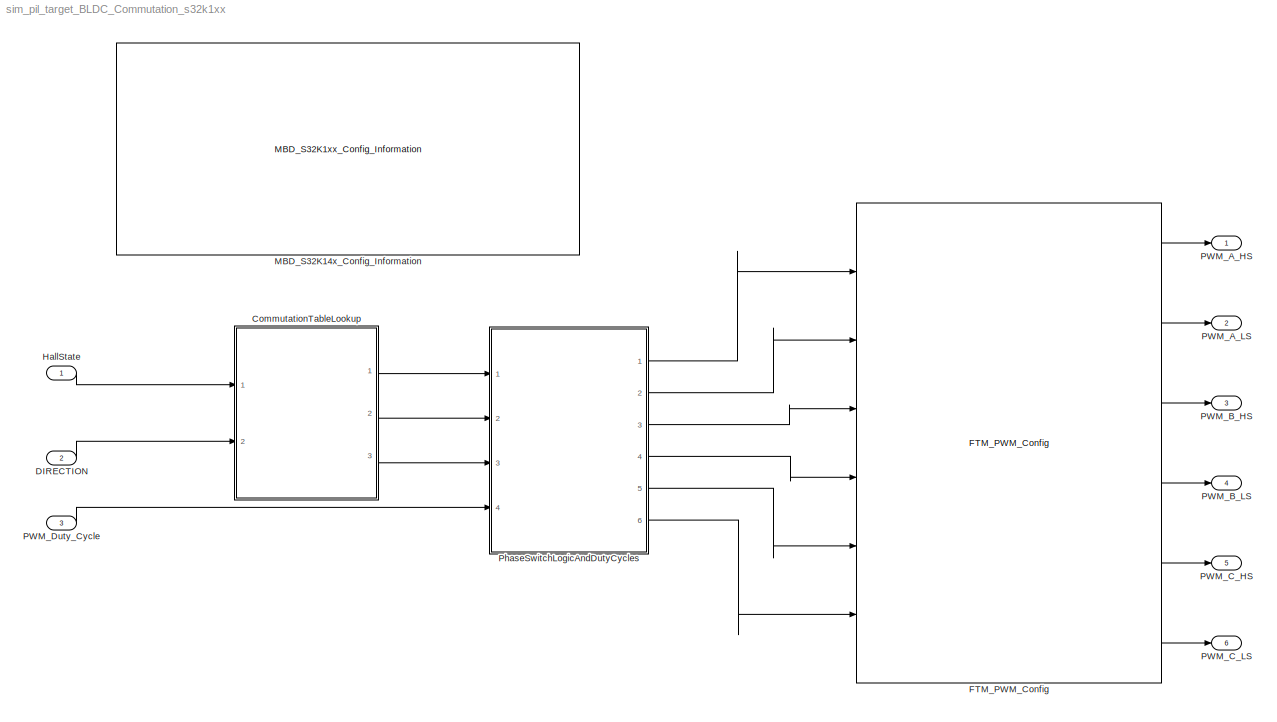
MODEL sim_pil_target_BLDC_Commutation_s32k1xx
KIND model
CONFIG InitFcn = mbd_s32k_consistency_checks(bdroot(gcs));
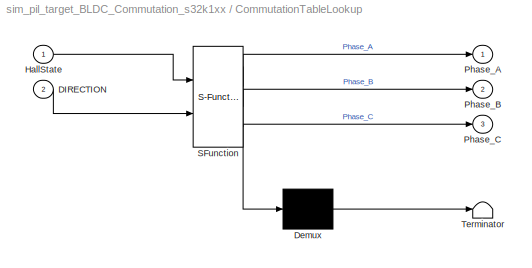
BLOCK [SubSystem] CommutationTableLookup
  ErrorFcn = Stateflow.Translate.translate
  PermitHierarchicalResolution = ExplicitOnly
  Ports = [2, 3]
  RequestExecContextInheritance = off
  SFBlockType = Chart
  SID = 41
  TreatAsAtomicUnit = on
  Variant = off
BLOCK [Demux] CommutationTableLookup/ Demux 
  Outputs = 1
  Ports = [1, 1]
  SID = 41::84
BLOCK [S-Function] CommutationTableLookup/ SFunction 
  EnableBusSupport = off
  FunctionName = sf_sfun
  PortCounts = [2 4]
  Ports = [2, 4]
  SFcnIsStateOwnerBlock = off
  SFunctionDeploymentMode = off
  SID = 41::83
  Tag = Stateflow S-Function sim_pil_target_BLDC_Commutation_s32k1xx 1
BLOCK [Terminator] CommutationTableLookup/ Terminator 
  SID = 41::85
BLOCK [Inport] CommutationTableLookup/DIRECTION
  IconDisplay = Port number
  Port = 2
  SID = 41::61
BLOCK [Inport] CommutationTableLookup/HallState
  IconDisplay = Port number
  SID = 41::50
BLOCK [Outport] CommutationTableLookup/Phase_A
  IconDisplay = Port number
  SID = 41::51
BLOCK [Outport] CommutationTableLookup/Phase_B
  IconDisplay = Port number
  Port = 2
  SID = 41::52
BLOCK [Outport] CommutationTableLookup/Phase_C
  IconDisplay = Port number
  Port = 3
  SID = 41::53
BLOCK [Inport] DIRECTION
  IconDisplay = Port number
  Port = 2
  SID = 37
BLOCK [Reference] FTM_PWM_Config  REF=mbd_s32k1xx_ec_toolbox/Motor Control Blocks/FTM Blocks/FTM_PWM_Config
  Ports = [6, 6]
  Priority = 1
  SID = 43
  SourceBlock = mbd_s32k1xx_ec_toolbox/Motor Control Blocks/FTM Blocks/FTM_PWM_Config
  SourceType = FTM_s32k_pwm_config_block
  chTrigger0 = off
  chTrigger1 = off
  chTrigger2 = off
  chTrigger3 = off
  chTrigger4 = off
  chTrigger5 = off
  chTrigger6 = off
  chTrigger7 = off
  chan0En = on
  chan0Type = Independent
  chan2En = on
  chan2Type = Independent
  chan4En = on
  chan4Type = Independent
  chan6En = off
  chan6Type = Independent
  chnMatch0 = off
  chnMatch1 = off
  chnMatch2 = off
  chnMatch3 = off
  chnMatch4 = off
  chnMatch5 = off
  chnMatch6 = off
  chnMatch7 = off
  deadtimeNs = 0
  deadtimePrescaler = Divide by 1
  deadtimeTicks = 0
  deadtimeUnits = Nanoseconds
  dutyCycleCh0 = 0.26
  dutyCycleCh1 = 0.25
  dutyCycleCh2 = 0.25
  dutyCycleCh3 = 0.25
  dutyCycleCh4 = 0.25
  dutyCycleCh5 = 0.25
  dutyCycleCh6 = 0.25
  dutyCycleCh7 = 0.25
  dutyCycleSim = on
  fault_disen_0 = off
  fault_disen_1 = off
  fault_disen_2 = off
  fault_disen_3 = off
  fault_filter_0 = off
  fault_filter_1 = off
  fault_filter_2 = off
  fault_filter_3 = off
  fault_pin_0 = None
  fault_pin_1 = None
  fault_pin_2 = None
  fault_pin_3 = None
  fault_polarity_0 = Active High
  fault_polarity_1 = Active high
  fault_polarity_2 = Active high
  fault_polarity_3 = Active high
  ftmMode = Center-Aligned PWM
  ftmModule = 0
  ftmPeriod = 20000
  ftmPrescaler = Divide by 4
  ftmPwmUnits = Hz
  ftmSourceClock = 80 MHz
  initTrigger = off
  mcuTargetUpdate = on
  outFrequency = 1000
  outputComplem0 = Main duplicated
  outputComplem2 = Main duplicated
  outputComplem4 = Main duplicated
  outputComplem6 = Main duplicated
  outputLevel0 = Low
  outputLevel1 = Low
  outputLevel2 = Low
  outputLevel3 = Low
  outputLevel4 = Low
  outputLevel5 = Low
  outputLevel6 = Low
  outputLevel7 = Low
  pinFtmCh0 = PTB12: [FTM0_CH0 | FTM Channel]
  pinFtmCh1 = None
  pinFtmCh2 = PTC2: [FTM0_CH2 | FTM Channel]
  pinFtmCh3 = None
  pinFtmCh4 = PTB4: [FTM0_CH4 | FTM Channel]
  pinFtmCh5 = None
  pinFtmCh6 = PTA17: [FTM0_CH6 | FTM Channel]
  pinFtmCh7 = None
  pinPolCh0 = Active Low
  pinPolCh1 = Active Low
  pinPolCh2 = Active Low
  pinPolCh3 = Active Low
  pinPolCh4 = Active Low
  pinPolCh5 = Active Low
  pinPolCh6 = Active Low
  pinPolCh7 = Active Low
  pwmFaultClearing = Fault control disabled
  pwmFaultFilterValue = 0
  pwmFaultInterrupt = off
  pwmFaultPinState = Safe Value
  pwmFaultPriority = 15
  pwmFaultProtection = off
  pwmSyncAutoClear = on
  pwmSyncCounterInitial = System Clock
  pwmSyncHwRouting = TRGMUX_FTM7
  pwmSyncInvert = System Clock
  pwmSyncMaxLoad = on
  pwmSyncMinLoad = on
  pwmSyncOutControl = System Clock
  pwmSyncOutMask = System Clock
  pwmSyncPoints = Update now
  pwmSyncTrg = Software trigger
  pwmSyncTrg0 = off
  pwmSyncTrg1 = off
  pwmSyncTrg2 = off
  reloadEnable = off
  reloadFrequency = 0
  reloadHCR = 0
  reloadHalfCycle = off
  reloadPriority = 15
  showAdvOpt = on
  startAfterInit = on
  swcontrol_enable = off
BLOCK [Inport] HallState
  IconDisplay = Port number
  SID = 36
BLOCK [Reference] MBD_S32K14x_Config_Information  REF=mbd_s32k1xx_ec_toolbox/MBD_S32K1xx_Config_Information
  ADC_PcrCheckEnDis = on
  AMMCLIB_PcrCheckEnDis = on
  CMP_PcrCheckEnDis = on
  CSEc_PcrCheckEnDis = on
  ConfigParams_PcrCheckEnDis = on
  FM_PcrCheckEnDis = on
  FTM_Dual_Edge_Inputs_PcrCheckEnDis = on
  FTM_Hall_Sensor_Inputs_PcrCheckEnDis = on
  FTM_Input_Edge_Inputs_PcrCheckEnDis = on
  FTM_PWM_PcrCheckEnDis = on
  FTM_Quadrature_Inputs_PcrCheckEnDis = on
  FlexCAN_PcrCheckEnDis = on
  FlexIO_PcrCheckEnDis = on
  GPIO_InputPcrCheckEnDis = on
  GPIO_OutputPcrCheckEnDis = on
  LIN_PcrCheckEnDis = on
  LPI2C_PcrCheckEnDis = on
  LPSPI_PcrCheckEnDis = on
  LPTMR_PcrCheckEnDis = on
  LPUART_PcrCheckEnDis = on
  ModelRef_PcrCheckEnDis = on
  PDB0_PcrCheckEnDis = on
  PIT_PcrCheckEnDis = on
  Ports = []
  Profile_PcrCheckEnDis = on
  RTC_PcrCheckEnDis = on
  SBC_PcrCheckEnDis = on
  SID = 1
  SourceBlock = mbd_s32k1xx_ec_toolbox/MBD_S32K1xx_Config_Information
  SourceType = MBDTBX_EC_S32K
  WDOG_PcrCheckEnDis = on
  config_params = []
  disp_str = Target : S32K144-64KB_SRAM\nPackage : 100-pin\nSystem clock : 80 MHz\nXTAL clock : External 8 MHz\nCompiler : GCC\nTarget Type : FLASH\nProcessor-In-Loop : (COM1, 115200, OpenSDA: E)\nStep Tick Interrupt Priority : 15
  ds_import_enable = off
  eDMA_PcrCheckEnDis = on
  gcc_target_assemble_opts = -mcpu=cortex-m4 -mthumb -mfloat-abi=hard -mfpu=fpv4-sp-d16 -g
  gcc_target_compile_opts = -mcpu=cortex-m4 -mthumb -mfloat-abi=hard -mfpu=fpv4-sp-d16 -O1 -g -gstrict-dwarf
  gcc_target_default_lcf = on
  gcc_target_link_opts = -mcpu=cortex-m4 -mthumb -mfloat-abi=hard -mfpu=fpv4-sp-d16
  gcc_target_user_lcf = S32K144_64_flash.ld
  ghs_target_assemble_opts = -cpu=cortexm4f -fpu=vfpv4_d16
  ghs_target_compile_opts = -cpu=cortexm4f -thumb -DARM_MATH_CM4 -fpu=vfpv4_d16 -fsingle -Ogeneral -Wundef -Wimplicit-int -Wshadow -Wtrigraphs --no_commons --gnu_asm -gnu99 -gdwarf-2 -G
  ghs_target_default_lcf = on
  ghs_target_link_opts = -cpu=cortexm4f -thumb -fpu=vfpv4_d16
  ghs_target_user_lcf = S32K144_64_flash.ld
  iar_target_assemble_opts = --cpu Cortex-M4F --thumb --fpu VFPv4_sp
  iar_target_compile_opts = --cpu=Cortex-M4F --thumb --fpu=VFPv4_sp -Ol -e --debug --dlib_config normal
  iar_target_default_lcf = on
  iar_target_link_opts = --no_exceptions --vfe --inline
  iar_target_user_lcf = S32K144_64_flash.icf
  mbdt_ver = 0
  mcu_steptick_prio = 15
  mcu_steptick_timer = LPIT Channel 0
  mcu_system_clock_freq = 80
  mcu_target_name = S32K144
  mcu_target_package = 100-LQFP
  mcu_target_sram_size = 64KB
  mcu_xtal_freq = External 8
  pil_download_enable = on
  pil_download_rate = 57600
  pil_opensda_drive = Custom
  pil_opensda_drive_custom = D
  pil_uart_instance = 1
  pil_uart_rx = PTC6: [LPUART1_RX | Receive]
  pil_uart_tx = PTC7: [LPUART1_TX | Transmit]
  rbl_com_port = Custom
  rbl_com_port_custom = COM1
  rbl_download_enable = off
  rbl_download_interface = OpenSDA
  rbl_restart_request = off
  rbl_start_delay = 5000000
  target_compiler = GCC
  target_memory = FLASH
BLOCK [Outport] PWM_A_HS
  IconDisplay = Port number
  SID = 30
BLOCK [Outport] PWM_A_LS
  IconDisplay = Port number
  Port = 2
  SID = 31
BLOCK [Outport] PWM_B_HS
  IconDisplay = Port number
  Port = 3
  SID = 32
BLOCK [Outport] PWM_B_LS
  IconDisplay = Port number
  Port = 4
  SID = 33
BLOCK [Outport] PWM_C_HS
  IconDisplay = Port number
  Port = 5
  SID = 34
BLOCK [Outport] PWM_C_LS
  IconDisplay = Port number
  Port = 6
  SID = 35
BLOCK [Inport] PWM_Duty_Cycle
  IconDisplay = Port number
  Port = 3
  SID = 38
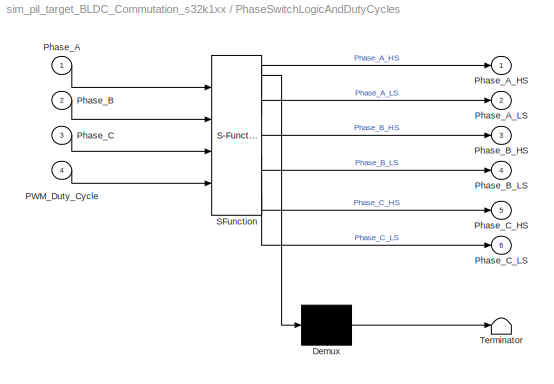
BLOCK [SubSystem] PhaseSwitchLogicAndDutyCycles
  ErrorFcn = Stateflow.Translate.translate
  PermitHierarchicalResolution = ExplicitOnly
  Ports = [4, 6]
  RequestExecContextInheritance = off
  SFBlockType = Chart
  SID = 42
  TreatAsAtomicUnit = on
  Variant = off
BLOCK [Demux] PhaseSwitchLogicAndDutyCycles/ Demux 
  Outputs = 1
  Ports = [1, 1]
  SID = 42::34
BLOCK [S-Function] PhaseSwitchLogicAndDutyCycles/ SFunction 
  EnableBusSupport = off
  FunctionName = sf_sfun
  PortCounts = [4 7]
  Ports = [4, 7]
  SFcnIsStateOwnerBlock = off
  SFunctionDeploymentMode = off
  SID = 42::33
  Tag = Stateflow S-Function sim_pil_target_BLDC_Commutation_s32k1xx 6
BLOCK [Terminator] PhaseSwitchLogicAndDutyCycles/ Terminator 
  SID = 42::35
BLOCK [Inport] PhaseSwitchLogicAndDutyCycles/PWM_Duty_Cycle
  IconDisplay = Port number
  Port = 4
  SID = 42::4
BLOCK [Inport] PhaseSwitchLogicAndDutyCycles/Phase_A
  IconDisplay = Port number
  SID = 42::1
BLOCK [Outport] PhaseSwitchLogicAndDutyCycles/Phase_A_HS
  IconDisplay = Port number
  SID = 42::8
BLOCK [Outport] PhaseSwitchLogicAndDutyCycles/Phase_A_LS
  IconDisplay = Port number
  Port = 2
  SID = 42::9
BLOCK [Inport] PhaseSwitchLogicAndDutyCycles/Phase_B
  IconDisplay = Port number
  Port = 2
  SID = 42::2
BLOCK [Outport] PhaseSwitchLogicAndDutyCycles/Phase_B_HS
  IconDisplay = Port number
  Port = 3
  SID = 42::10
BLOCK [Outport] PhaseSwitchLogicAndDutyCycles/Phase_B_LS
  IconDisplay = Port number
  Port = 4
  SID = 42::11
BLOCK [Inport] PhaseSwitchLogicAndDutyCycles/Phase_C
  IconDisplay = Port number
  Port = 3
  SID = 42::3
BLOCK [Outport] PhaseSwitchLogicAndDutyCycles/Phase_C_HS
  IconDisplay = Port number
  Port = 5
  SID = 42::12
BLOCK [Outport] PhaseSwitchLogicAndDutyCycles/Phase_C_LS
  IconDisplay = Port number
  Port = 6
  SID = 42::13
LINE CommutationTableLookup/ Demux :1 -> CommutationTableLookup/ Terminator :1
LINE CommutationTableLookup/ SFunction :1 -> CommutationTableLookup/ Demux :1
LINE CommutationTableLookup/ SFunction :2 -> CommutationTableLookup/Phase_A:1
LINE CommutationTableLookup/ SFunction :3 -> CommutationTableLookup/Phase_B:1
LINE CommutationTableLookup/ SFunction :4 -> CommutationTableLookup/Phase_C:1
LINE CommutationTableLookup/DIRECTION:1 -> CommutationTableLookup/ SFunction :2
LINE CommutationTableLookup/HallState:1 -> CommutationTableLookup/ SFunction :1
LINE CommutationTableLookup:1 -> PhaseSwitchLogicAndDutyCycles:1
LINE CommutationTableLookup:2 -> PhaseSwitchLogicAndDutyCycles:2
LINE CommutationTableLookup:3 -> PhaseSwitchLogicAndDutyCycles:3
LINE DIRECTION:1 -> CommutationTableLookup:2
LINE FTM_PWM_Config:1 -> PWM_A_HS:1
LINE FTM_PWM_Config:2 -> PWM_A_LS:1
LINE FTM_PWM_Config:3 -> PWM_B_HS:1
LINE FTM_PWM_Config:4 -> PWM_B_LS:1
LINE FTM_PWM_Config:5 -> PWM_C_HS:1
LINE FTM_PWM_Config:6 -> PWM_C_LS:1
LINE HallState:1 -> CommutationTableLookup:1
LINE PWM_Duty_Cycle:1 -> PhaseSwitchLogicAndDutyCycles:4
LINE PhaseSwitchLogicAndDutyCycles/ Demux :1 -> PhaseSwitchLogicAndDutyCycles/ Terminator :1
LINE PhaseSwitchLogicAndDutyCycles/ SFunction :1 -> PhaseSwitchLogicAndDutyCycles/ Demux :1
LINE PhaseSwitchLogicAndDutyCycles/ SFunction :2 -> PhaseSwitchLogicAndDutyCycles/Phase_A_HS:1
LINE PhaseSwitchLogicAndDutyCycles/ SFunction :3 -> PhaseSwitchLogicAndDutyCycles/Phase_A_LS:1
LINE PhaseSwitchLogicAndDutyCycles/ SFunction :4 -> PhaseSwitchLogicAndDutyCycles/Phase_B_HS:1
LINE PhaseSwitchLogicAndDutyCycles/ SFunction :5 -> PhaseSwitchLogicAndDutyCycles/Phase_B_LS:1
LINE PhaseSwitchLogicAndDutyCycles/ SFunction :6 -> PhaseSwitchLogicAndDutyCycles/Phase_C_HS:1
LINE PhaseSwitchLogicAndDutyCycles/ SFunction :7 -> PhaseSwitchLogicAndDutyCycles/Phase_C_LS:1
LINE PhaseSwitchLogicAndDutyCycles/PWM_Duty_Cycle:1 -> PhaseSwitchLogicAndDutyCycles/ SFunction :4
LINE PhaseSwitchLogicAndDutyCycles/Phase_A:1 -> PhaseSwitchLogicAndDutyCycles/ SFunction :1
LINE PhaseSwitchLogicAndDutyCycles/Phase_B:1 -> PhaseSwitchLogicAndDutyCycles/ SFunction :2
LINE PhaseSwitchLogicAndDutyCycles/Phase_C:1 -> PhaseSwitchLogicAndDutyCycles/ SFunction :3
LINE PhaseSwitchLogicAndDutyCycles:1 -> FTM_PWM_Config:1
LINE PhaseSwitchLogicAndDutyCycles:2 -> FTM_PWM_Config:2
LINE PhaseSwitchLogicAndDutyCycles:3 -> FTM_PWM_Config:3
LINE PhaseSwitchLogicAndDutyCycles:4 -> FTM_PWM_Config:4
LINE PhaseSwitchLogicAndDutyCycles:5 -> FTM_PWM_Config:5
LINE PhaseSwitchLogicAndDutyCycles:6 -> FTM_PWM_Config:6
CHART CommutationTableLookup states=0 transitions=5
CHART PhaseSwitchLogicAndDutyCycles states=1 transitions=31
  STATE_LABEL 'Phase States:\\n0 = NC\\n1 = -Vdcb\\n2 = +Vdcb'
